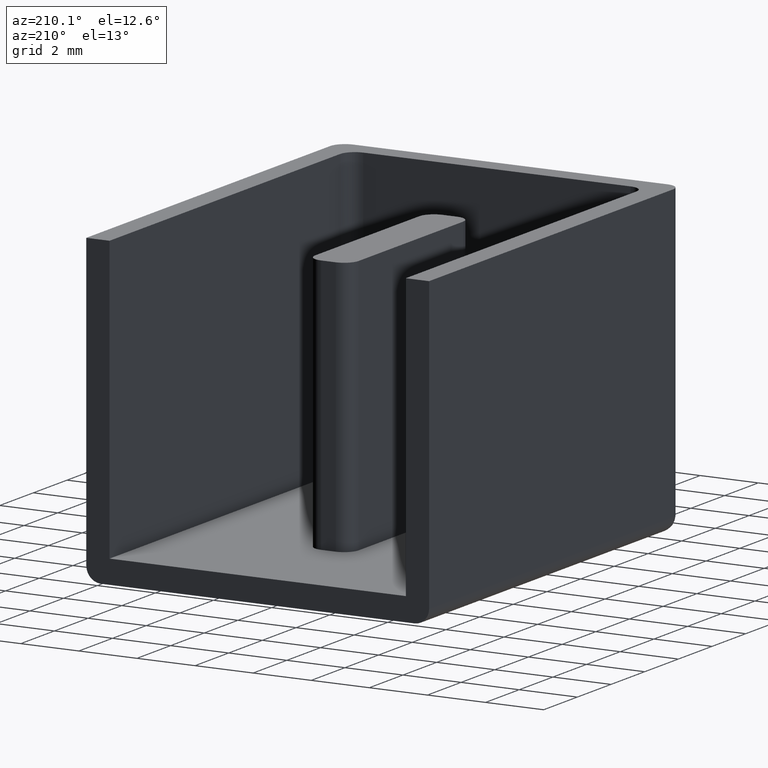
[diagram: clean part render]
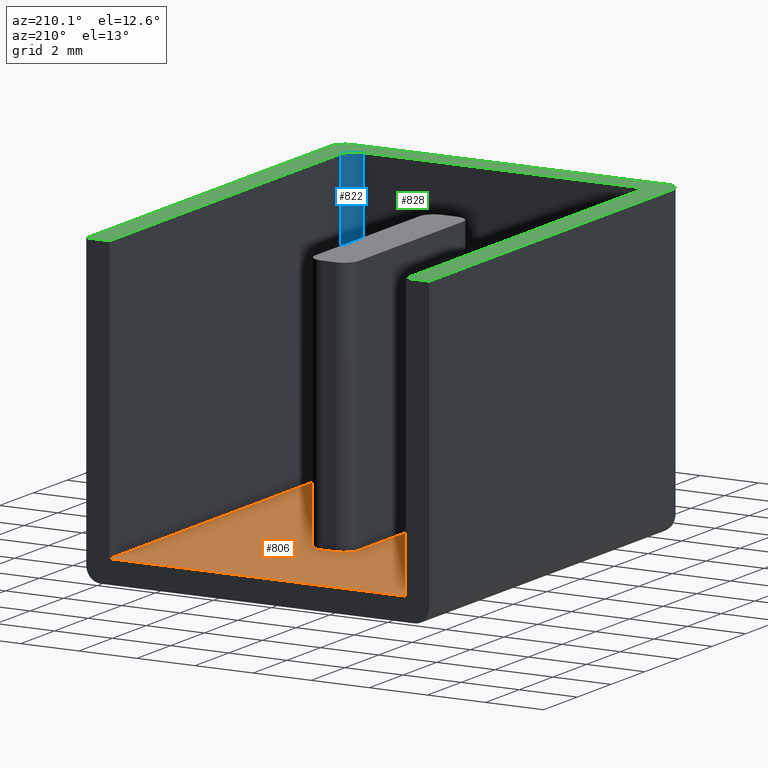
[diagram: same view with three faces highlighted in distinct colors, each labeled with its STEP entity id]
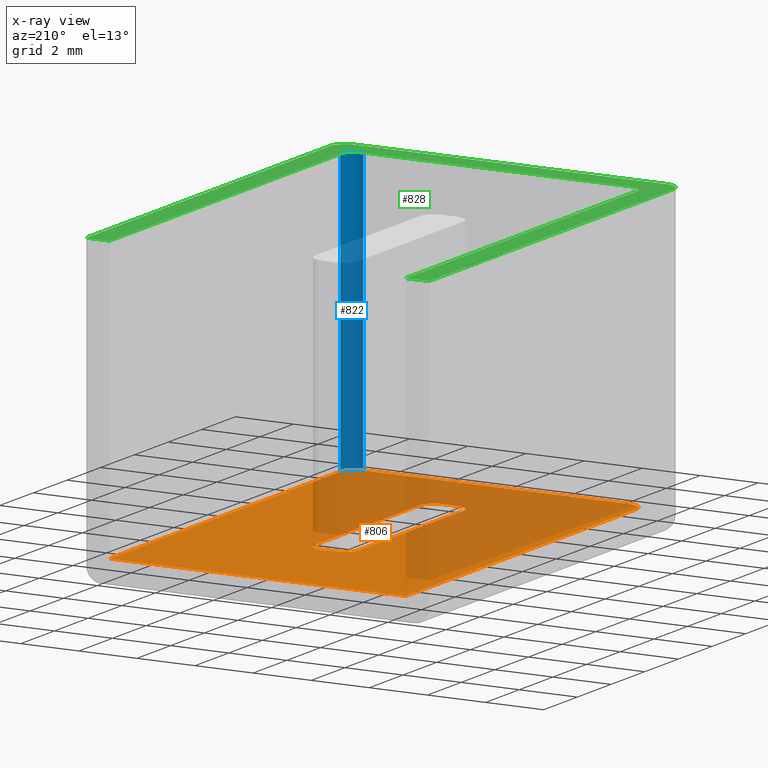
[diagram: x-ray of the same camera — body ghosted, the three highlighted faces saturated]
A machine part, auxiliary view with three faces highlighted in distinct colors.
The next image is the same camera in x-ray (body ghosted, the three faces saturated) — at least one of them is partly hidden behind the body in this view.
Their STEP definitions:

[orange] entity #806 — the highlighted planar face has unit normal (0, 0, -1).
#1 = AXIS2_PLACEMENT_3D ( 'NONE', #386, #387, #389 ) ;
#4 = VECTOR ( 'NONE', #435, 1000.000000000000000 ) ;
#13 = CIRCLE ( 'NONE', #19, 0.4999999999999726900 ) ;
#16 = VECTOR ( 'NONE', #415, 1000.000000000000000 ) ;
#19 = AXIS2_PLACEMENT_3D ( 'NONE', #432, #413, #433 ) ;
#26 = VECTOR ( 'NONE', #670, 1000.000000000000000 ) ;
#27 = AXIS2_PLACEMENT_3D ( 'NONE', #554, #549, #567 ) ;
#28 = AXIS2_PLACEMENT_3D ( 'NONE', #598, #592, #612 ) ;
#42 = CIRCLE ( 'NONE', #48, 0.5000000000000000000 ) ;
#48 = AXIS2_PLACEMENT_3D ( 'NONE', #649, #650, #660 ) ;
#61 = CIRCLE ( 'NONE', #27, 0.5000000000000004400 ) ;
#64 = CIRCLE ( 'NONE', #28, 0.4999999999999726900 ) ;
#88 = CIRCLE ( 'NONE', #89, 0.5000000000000698300 ) ;
#89 = AXIS2_PLACEMENT_3D ( 'NONE', #689, #703, #705 ) ;
#96 = VECTOR ( 'NONE', #651, 1000.000000000000000 ) ;
#98 = VECTOR ( 'NONE', #749, 1000.000000000000000 ) ;
#100 = VECTOR ( 'NONE', #726, 1000.000000000000000 ) ;
#101 = AXIS2_PLACEMENT_3D ( 'NONE', #735, #729, #753 ) ;
#102 = VECTOR ( 'NONE', #682, 1000.000000000000000 ) ;
#106 = CIRCLE ( 'NONE', #101, 0.4999999999999726900 ) ;
#123 = VECTOR ( 'NONE', #688, 1000.000000000000000 ) ;
#140 = ORIENTED_EDGE ( 'NONE', *, *, #888, .F. ) ;
#141 = ORIENTED_EDGE ( 'NONE', *, *, #858, .T. ) ;
#142 = ORIENTED_EDGE ( 'NONE', *, *, #891, .F. ) ;
#143 = ORIENTED_EDGE ( 'NONE', *, *, #864, .F. ) ;
#144 = ORIENTED_EDGE ( 'NONE', *, *, #804, .F. ) ;
#145 = ORIENTED_EDGE ( 'NONE', *, *, #835, .T. ) ;
#149 = ORIENTED_EDGE ( 'NONE', *, *, #802, .T. ) ;
#150 = ORIENTED_EDGE ( 'NONE', *, *, #883, .T. ) ;
#151 = ORIENTED_EDGE ( 'NONE', *, *, #890, .T. ) ;
#152 = ORIENTED_EDGE ( 'NONE', *, *, #868, .F. ) ;
#153 = ORIENTED_EDGE ( 'NONE', *, *, #850, .F. ) ;
#159 = ORIENTED_EDGE ( 'NONE', *, *, #876, .F. ) ;
#175 = ORIENTED_EDGE ( 'NONE', *, *, #884, .F. ) ;
#202 = ORIENTED_EDGE ( 'NONE', *, *, #805, .F. ) ;
#268 = VERTEX_POINT ( 'NONE', #369 ) ;
#272 = VERTEX_POINT ( 'NONE', #288 ) ;
#273 = VERTEX_POINT ( 'NONE', #304 ) ;
#274 = VERTEX_POINT ( 'NONE', #334 ) ;
#275 = VERTEX_POINT ( 'NONE', #326 ) ;
#282 = VERTEX_POINT ( 'NONE', #346 ) ;
#283 = VERTEX_POINT ( 'NONE', #367 ) ;
#284 = VERTEX_POINT ( 'NONE', #351 ) ;
#285 = VERTEX_POINT ( 'NONE', #347 ) ;
#288 = CARTESIAN_POINT ( 'NONE',  ( 5.649999999999821800, 10.80000000000011400, 0.8000000000000003800 ) ) ;
#295 = EDGE_LOOP ( 'NONE', ( #144, #152, #153, #140, #142, #175, #159, #202 ) ) ;
#304 = CARTESIAN_POINT ( 'NONE',  ( 11.00000000000000200, 1.299999999999999200, 0.8000000000000000400 ) ) ;
#306 = VERTEX_POINT ( 'NONE', #353 ) ;
#317 = EDGE_LOOP ( 'NONE', ( #149, #145, #150, #143, #151, #141 ) ) ;
#321 = VERTEX_POINT ( 'NONE', #383 ) ;
#322 = VERTEX_POINT ( 'NONE', #355 ) ;
#324 = VERTEX_POINT ( 'NONE', #325 ) ;
#325 = CARTESIAN_POINT ( 'NONE',  ( 1.300000000000000000, 0.8000000000000003800, 0.8000000000000000400 ) ) ;
#326 = CARTESIAN_POINT ( 'NONE',  ( 6.149999999999877800, 10.80000000000011400, 0.8000000000000000400 ) ) ;
#332 = CARTESIAN_POINT ( 'NONE',  ( 6.650000000000003000, 10.30000000000031000, 0.8000000000000003800 ) ) ;
#334 = CARTESIAN_POINT ( 'NONE',  ( 5.649999999999932900, 3.599999999999992100, 0.8000000000000000400 ) ) ;
#346 = CARTESIAN_POINT ( 'NONE',  ( 0.7999999999999999300, 15.00000000000000400, 0.8000000000000000400 ) ) ;
#347 = CARTESIAN_POINT ( 'NONE',  ( 11.00000000000000200, 15.00000000000000400, 0.8000000000000000400 ) ) ;
#351 = CARTESIAN_POINT ( 'NONE',  ( 0.7999999999999999300, 1.299999999999999200, 0.8000000000000000400 ) ) ;
#353 = CARTESIAN_POINT ( 'NONE',  ( 5.149999999999987900, 10.30000000000014300, 0.8000000000000000400 ) ) ;
#355 = CARTESIAN_POINT ( 'NONE',  ( 6.649999999999933700, 4.099999999999992500, 0.8000000000000000400 ) ) ;
#361 = VERTEX_POINT ( 'NONE', #332 ) ;
#367 = CARTESIAN_POINT ( 'NONE',  ( 5.149999999999960400, 4.099999999999992500, 0.8000000000000003800 ) ) ;
#369 = CARTESIAN_POINT ( 'NONE',  ( 6.149999999999988800, 3.599999999999992100, 0.8000000000000000400 ) ) ;
#383 = CARTESIAN_POINT ( 'NONE',  ( 10.49999999999999800, 0.8000000000000003800, 0.8000000000000000400 ) ) ;
#385 = FACE_OUTER_BOUND ( 'NONE', #317, .T. ) ;
#386 = CARTESIAN_POINT ( 'NONE',  ( 0.0000000000000000000, 15.00000000000000000, 0.8000000000000000400 ) ) ;
#387 = DIRECTION ( 'NONE',  ( 0.0000000000000000000, 0.0000000000000000000, -1.000000000000000000 ) ) ;
#389 = DIRECTION ( 'NONE',  ( -1.000000000000000000, 0.0000000000000000000, -0.0000000000000000000 ) ) ;
#399 = PLANE ( 'NONE',  #1 ) ;
#401 = CARTESIAN_POINT ( 'NONE',  ( 6.650000000000044800, 10.30000000000031000, 0.8000000000000000400 ) ) ;
#409 = FACE_BOUND ( 'NONE', #295, .T. ) ;
#413 = DIRECTION ( 'NONE',  ( 0.0000000000000000000, 0.0000000000000000000, 1.000000000000000000 ) ) ;
#415 = DIRECTION ( 'NONE',  ( 1.000000000000000000, 0.0000000000000000000, 0.0000000000000000000 ) ) ;
#424 = LINE ( 'NONE', #428, #16 ) ;
#428 = CARTESIAN_POINT ( 'NONE',  ( 0.0000000000000000000, 0.8000000000000003800, 0.8000000000000000400 ) ) ;
#429 = LINE ( 'NONE', #401, #4 ) ;
#432 = CARTESIAN_POINT ( 'NONE',  ( 6.149999999999988800, 4.099999999999992500, 0.8000000000000000400 ) ) ;
#433 = DIRECTION ( 'NONE',  ( 1.000000000000000000, 0.0000000000000000000, 0.0000000000000000000 ) ) ;
#435 = DIRECTION ( 'NONE',  ( 1.790682297782419300E-014, 1.000000000000000000, -0.0000000000000000000 ) ) ;
#549 = DIRECTION ( 'NONE',  ( -0.0000000000000000000, -0.0000000000000000000, 1.000000000000000000 ) ) ;
#554 = CARTESIAN_POINT ( 'NONE',  ( 10.49999999999999800, 1.300000000000000000, 0.8000000000000003800 ) ) ;
#567 = DIRECTION ( 'NONE',  ( -1.000000000000000000, 0.0000000000000000000, 0.0000000000000000000 ) ) ;
#592 = DIRECTION ( 'NONE',  ( 0.0000000000000000000, 0.0000000000000000000, 1.000000000000000000 ) ) ;
#598 = CARTESIAN_POINT ( 'NONE',  ( 5.649999999999932900, 4.099999999999992500, 0.8000000000000000400 ) ) ;
#612 = DIRECTION ( 'NONE',  ( 1.000000000000000000, 0.0000000000000000000, 0.0000000000000000000 ) ) ;
#630 = LINE ( 'NONE', #654, #96 ) ;
#637 = CARTESIAN_POINT ( 'NONE',  ( 0.0000000000000000000, 15.00000000000000000, 0.8000000000000020400 ) ) ;
#649 = CARTESIAN_POINT ( 'NONE',  ( 1.300000000000000000, 1.299999999999999800, 0.8000000000000003800 ) ) ;
#650 = DIRECTION ( 'NONE',  ( -0.0000000000000000000, -0.0000000000000000000, 1.000000000000000000 ) ) ;
#651 = DIRECTION ( 'NONE',  ( 1.000000000000000000, -0.0000000000000000000, -0.0000000000000000000 ) ) ;
#654 = CARTESIAN_POINT ( 'NONE',  ( 6.149999999999988800, 3.599999999999992100, 0.8000000000000000400 ) ) ;
#659 = LINE ( 'NONE', #637, #26 ) ;
#660 = DIRECTION ( 'NONE',  ( -1.000000000000000000, 0.0000000000000000000, 0.0000000000000000000 ) ) ;
#670 = DIRECTION ( 'NONE',  ( 1.000000000000000000, 0.0000000000000000000, 0.0000000000000000000 ) ) ;
#674 = CARTESIAN_POINT ( 'NONE',  ( 11.00000000000000200, 15.00000000000000000, 0.8000000000000000400 ) ) ;
#676 = LINE ( 'NONE', #674, #102 ) ;
#682 = DIRECTION ( 'NONE',  ( 0.0000000000000000000, 1.000000000000000000, 0.0000000000000000000 ) ) ;
#688 = DIRECTION ( 'NONE',  ( -1.000000000000000000, 5.551115123125161700E-014, -0.0000000000000000000 ) ) ;
#689 = CARTESIAN_POINT ( 'NONE',  ( 6.149999999999932900, 10.30000000000008600, 0.8000000000000000400 ) ) ;
#703 = DIRECTION ( 'NONE',  ( 0.0000000000000000000, 0.0000000000000000000, 1.000000000000000000 ) ) ;
#705 = DIRECTION ( 'NONE',  ( 1.000000000000000000, 0.0000000000000000000, 0.0000000000000000000 ) ) ;
#709 = CARTESIAN_POINT ( 'NONE',  ( 5.649999999999821800, 10.80000000000014300, 0.8000000000000000400 ) ) ;
#711 = LINE ( 'NONE', #709, #123 ) ;
#718 = LINE ( 'NONE', #745, #98 ) ;
#725 = LINE ( 'NONE', #734, #100 ) ;
#726 = DIRECTION ( 'NONE',  ( 0.0000000000000000000, -1.000000000000000000, 0.0000000000000000000 ) ) ;
#729 = DIRECTION ( 'NONE',  ( 0.0000000000000000000, 0.0000000000000000000, 1.000000000000000000 ) ) ;
#734 = CARTESIAN_POINT ( 'NONE',  ( 0.7999999999999999300, 15.00000000000000000, 0.8000000000000000400 ) ) ;
#735 = CARTESIAN_POINT ( 'NONE',  ( 5.649999999999932900, 10.30000000000014300, 0.8000000000000000400 ) ) ;
#745 = CARTESIAN_POINT ( 'NONE',  ( 5.149999999999987900, 4.099999999999992500, 0.8000000000000000400 ) ) ;
#749 = DIRECTION ( 'NONE',  ( -0.0000000000000000000, -1.000000000000000000, -0.0000000000000000000 ) ) ;
#753 = DIRECTION ( 'NONE',  ( 1.000000000000000000, 0.0000000000000000000, 0.0000000000000000000 ) ) ;
#802 = EDGE_CURVE ( 'NONE', #324, #321, #424, .T. ) ;
#804 = EDGE_CURVE ( 'NONE', #268, #322, #13, .T. ) ;
#805 = EDGE_CURVE ( 'NONE', #322, #361, #429, .T. ) ;
#806 = ADVANCED_FACE ( 'NONE', ( #385, #409 ), #399, .F. ) ;
#835 = EDGE_CURVE ( 'NONE', #321, #273, #61, .T. ) ;
#850 = EDGE_CURVE ( 'NONE', #283, #274, #64, .T. ) ;
#858 = EDGE_CURVE ( 'NONE', #284, #324, #42, .T. ) ;
#864 = EDGE_CURVE ( 'NONE', #282, #285, #659, .T. ) ;
#868 = EDGE_CURVE ( 'NONE', #274, #268, #630, .T. ) ;
#876 = EDGE_CURVE ( 'NONE', #361, #275, #88, .T. ) ;
#883 = EDGE_CURVE ( 'NONE', #273, #285, #676, .T. ) ;
#884 = EDGE_CURVE ( 'NONE', #275, #272, #711, .T. ) ;
#888 = EDGE_CURVE ( 'NONE', #306, #283, #718, .T. ) ;
#890 = EDGE_CURVE ( 'NONE', #282, #284, #725, .T. ) ;
#891 = EDGE_CURVE ( 'NONE', #272, #306, #106, .T. ) ;

[blue] entity #822 — the highlighted cylindrical surface (edge-blend (fillet) strip) has radius 0.5 mm, axis along (0, 0, 1).
#27 = AXIS2_PLACEMENT_3D ( 'NONE', #554, #549, #567 ) ;
#61 = CIRCLE ( 'NONE', #27, 0.5000000000000004400 ) ;
#80 = AXIS2_PLACEMENT_3D ( 'NONE', #501, #540, #504 ) ;
#82 = VECTOR ( 'NONE', #653, 1000.000000000000000 ) ;
#99 = VECTOR ( 'NONE', #750, 1000.000000000000000 ) ;
#105 = CIRCLE ( 'NONE', #107, 0.5000000000000004400 ) ;
#107 = AXIS2_PLACEMENT_3D ( 'NONE', #738, #737, #720 ) ;
#215 = ORIENTED_EDGE ( 'NONE', *, *, #835, .F. ) ;
#219 = ORIENTED_EDGE ( 'NONE', *, *, #892, .F. ) ;
#236 = ORIENTED_EDGE ( 'NONE', *, *, #894, .F. ) ;
#240 = ORIENTED_EDGE ( 'NONE', *, *, #871, .F. ) ;
#273 = VERTEX_POINT ( 'NONE', #304 ) ;
#291 = EDGE_LOOP ( 'NONE', ( #236, #240, #215, #219 ) ) ;
#304 = CARTESIAN_POINT ( 'NONE',  ( 11.00000000000000200, 1.299999999999999200, 0.8000000000000000400 ) ) ;
#321 = VERTEX_POINT ( 'NONE', #383 ) ;
#338 = VERTEX_POINT ( 'NONE', #348 ) ;
#344 = VERTEX_POINT ( 'NONE', #378 ) ;
#348 = CARTESIAN_POINT ( 'NONE',  ( 11.00000000000000200, 1.299999999999999200, 10.50000000000000000 ) ) ;
#378 = CARTESIAN_POINT ( 'NONE',  ( 10.49999999999999800, 0.8000000000000003800, 10.50000000000000000 ) ) ;
#383 = CARTESIAN_POINT ( 'NONE',  ( 10.49999999999999800, 0.8000000000000003800, 0.8000000000000000400 ) ) ;
#501 = CARTESIAN_POINT ( 'NONE',  ( 10.49999999999999800, 1.300000000000000000, 10.50000000000000000 ) ) ;
#503 = FACE_OUTER_BOUND ( 'NONE', #291, .T. ) ;
#504 = DIRECTION ( 'NONE',  ( 1.000000000000000000, 0.0000000000000000000, 0.0000000000000000000 ) ) ;
#508 = CYLINDRICAL_SURFACE ( 'NONE', #80, 0.5000000000000004400 ) ;
#540 = DIRECTION ( 'NONE',  ( 0.0000000000000000000, 0.0000000000000000000, 1.000000000000000000 ) ) ;
#549 = DIRECTION ( 'NONE',  ( -0.0000000000000000000, -0.0000000000000000000, 1.000000000000000000 ) ) ;
#554 = CARTESIAN_POINT ( 'NONE',  ( 10.49999999999999800, 1.300000000000000000, 0.8000000000000003800 ) ) ;
#567 = DIRECTION ( 'NONE',  ( -1.000000000000000000, 0.0000000000000000000, 0.0000000000000000000 ) ) ;
#653 = DIRECTION ( 'NONE',  ( -0.0000000000000000000, -0.0000000000000000000, 1.000000000000000000 ) ) ;
#668 = LINE ( 'NONE', #669, #82 ) ;
#669 = CARTESIAN_POINT ( 'NONE',  ( 11.00000000000000200, 1.300000000000000000, 10.50000000000000000 ) ) ;
#681 = LINE ( 'NONE', #683, #99 ) ;
#683 = CARTESIAN_POINT ( 'NONE',  ( 10.49999999999999800, 0.7999999999999999300, 0.8000000000000003800 ) ) ;
#720 = DIRECTION ( 'NONE',  ( -1.000000000000000000, 0.0000000000000000000, 0.0000000000000000000 ) ) ;
#737 = DIRECTION ( 'NONE',  ( 0.0000000000000000000, 0.0000000000000000000, -1.000000000000000000 ) ) ;
#738 = CARTESIAN_POINT ( 'NONE',  ( 10.49999999999999800, 1.300000000000000000, 10.50000000000000000 ) ) ;
#750 = DIRECTION ( 'NONE',  ( 0.0000000000000000000, 0.0000000000000000000, -1.000000000000000000 ) ) ;
#822 = ADVANCED_FACE ( 'NONE', ( #503 ), #508, .F. ) ;
#835 = EDGE_CURVE ( 'NONE', #321, #273, #61, .T. ) ;
#871 = EDGE_CURVE ( 'NONE', #273, #338, #668, .T. ) ;
#892 = EDGE_CURVE ( 'NONE', #344, #321, #681, .T. ) ;
#894 = EDGE_CURVE ( 'NONE', #338, #344, #105, .T. ) ;

[green] entity #828 — the highlighted planar face has unit normal (0, 0, -1).
#25 = CIRCLE ( 'NONE', #58, 0.5000000000000000000 ) ;
#29 = AXIS2_PLACEMENT_3D ( 'NONE', #662, #658, #667 ) ;
#40 = AXIS2_PLACEMENT_3D ( 'NONE', #497, #518, #500 ) ;
#41 = CIRCLE ( 'NONE', #44, 0.5000000000000000000 ) ;
#44 = AXIS2_PLACEMENT_3D ( 'NONE', #607, #589, #594 ) ;
#58 = AXIS2_PLACEMENT_3D ( 'NONE', #636, #652, #647 ) ;
#72 = VECTOR ( 'NONE', #558, 1000.000000000000000 ) ;
#75 = CIRCLE ( 'NONE', #29, 0.5000000000000004400 ) ;
#84 = VECTOR ( 'NONE', #696, 1000.000000000000000 ) ;
#86 = VECTOR ( 'NONE', #691, 1000.000000000000000 ) ;
#91 = VECTOR ( 'NONE', #663, 1000.000000000000000 ) ;
#93 = VECTOR ( 'NONE', #643, 1000.000000000000000 ) ;
#97 = VECTOR ( 'NONE', #657, 1000.000000000000000 ) ;
#105 = CIRCLE ( 'NONE', #107, 0.5000000000000004400 ) ;
#107 = AXIS2_PLACEMENT_3D ( 'NONE', #738, #737, #720 ) ;
#110 = VECTOR ( 'NONE', #751, 1000.000000000000000 ) ;
#114 = VECTOR ( 'NONE', #697, 1000.000000000000000 ) ;
#146 = ORIENTED_EDGE ( 'NONE', *, *, #869, .T. ) ;
#147 = ORIENTED_EDGE ( 'NONE', *, *, #861, .T. ) ;
#148 = ORIENTED_EDGE ( 'NONE', *, *, #865, .T. ) ;
#155 = ORIENTED_EDGE ( 'NONE', *, *, #837, .F. ) ;
#161 = ORIENTED_EDGE ( 'NONE', *, *, #894, .T. ) ;
#165 = ORIENTED_EDGE ( 'NONE', *, *, #889, .T. ) ;
#170 = ORIENTED_EDGE ( 'NONE', *, *, #873, .F. ) ;
#177 = ORIENTED_EDGE ( 'NONE', *, *, #863, .T. ) ;
#186 = ORIENTED_EDGE ( 'NONE', *, *, #856, .T. ) ;
#193 = ORIENTED_EDGE ( 'NONE', *, *, #880, .F. ) ;
#228 = ORIENTED_EDGE ( 'NONE', *, *, #870, .T. ) ;
#251 = ORIENTED_EDGE ( 'NONE', *, *, #875, .T. ) ;
#305 = EDGE_LOOP ( 'NONE', ( #146, #147, #148, #165, #155, #161, #193, #186, #170, #251, #228, #177 ) ) ;
#308 = VERTEX_POINT ( 'NONE', #377 ) ;
#327 = CARTESIAN_POINT ( 'NONE',  ( 0.0000000000000000000, 15.00000000000000000, 10.50000000000000000 ) ) ;
#328 = CARTESIAN_POINT ( 'NONE',  ( 11.30000000000000100, 0.0000000000000000000, 10.50000000000000000 ) ) ;
#329 = CARTESIAN_POINT ( 'NONE',  ( 1.300000000000000000, 0.8000000000000003800, 10.50000000000000000 ) ) ;
#338 = VERTEX_POINT ( 'NONE', #348 ) ;
#339 = VERTEX_POINT ( 'NONE', #357 ) ;
#343 = VERTEX_POINT ( 'NONE', #363 ) ;
#344 = VERTEX_POINT ( 'NONE', #378 ) ;
#345 = VERTEX_POINT ( 'NONE', #381 ) ;
#348 = CARTESIAN_POINT ( 'NONE',  ( 11.00000000000000200, 1.299999999999999200, 10.50000000000000000 ) ) ;
#349 = VERTEX_POINT ( 'NONE', #382 ) ;
#350 = VERTEX_POINT ( 'NONE', #327 ) ;
#352 = VERTEX_POINT ( 'NONE', #328 ) ;
#357 = CARTESIAN_POINT ( 'NONE',  ( 11.80000000000000100, 15.00000000000000000, 10.50000000000000000 ) ) ;
#358 = VERTEX_POINT ( 'NONE', #329 ) ;
#363 = CARTESIAN_POINT ( 'NONE',  ( 0.4999999999999997800, 0.0000000000000000000, 10.50000000000000000 ) ) ;
#372 = VERTEX_POINT ( 'NONE', #418 ) ;
#377 = CARTESIAN_POINT ( 'NONE',  ( 11.00000000000000200, 15.00000000000000400, 10.50000000000000000 ) ) ;
#378 = CARTESIAN_POINT ( 'NONE',  ( 10.49999999999999800, 0.8000000000000003800, 10.50000000000000000 ) ) ;
#379 = VERTEX_POINT ( 'NONE', #426 ) ;
#381 = CARTESIAN_POINT ( 'NONE',  ( 0.0000000000000000000, 0.4999999999999998900, 10.50000000000000000 ) ) ;
#382 = CARTESIAN_POINT ( 'NONE',  ( 0.7999999999999999300, 1.299999999999999200, 10.50000000000000000 ) ) ;
#418 = CARTESIAN_POINT ( 'NONE',  ( 0.7999999999999999300, 15.00000000000000400, 10.50000000000000000 ) ) ;
#426 = CARTESIAN_POINT ( 'NONE',  ( 11.80000000000000100, 0.4999999999999997800, 10.50000000000000000 ) ) ;
#494 = FACE_OUTER_BOUND ( 'NONE', #305, .T. ) ;
#496 = PLANE ( 'NONE',  #40 ) ;
#497 = CARTESIAN_POINT ( 'NONE',  ( 0.0000000000000000000, 15.00000000000000000, 10.50000000000000000 ) ) ;
#500 = DIRECTION ( 'NONE',  ( -1.000000000000000000, 0.0000000000000000000, -0.0000000000000000000 ) ) ;
#518 = DIRECTION ( 'NONE',  ( 0.0000000000000000000, 0.0000000000000000000, -1.000000000000000000 ) ) ;
#558 = DIRECTION ( 'NONE',  ( 0.0000000000000000000, 1.000000000000000000, 0.0000000000000000000 ) ) ;
#569 = LINE ( 'NONE', #582, #72 ) ;
#582 = CARTESIAN_POINT ( 'NONE',  ( 11.00000000000000200, 15.00000000000000000, 10.50000000000000000 ) ) ;
#589 = DIRECTION ( 'NONE',  ( 0.0000000000000000000, 0.0000000000000000000, -1.000000000000000000 ) ) ;
#594 = DIRECTION ( 'NONE',  ( -1.000000000000000000, 0.0000000000000000000, 0.0000000000000000000 ) ) ;
#607 = CARTESIAN_POINT ( 'NONE',  ( 1.300000000000000000, 1.299999999999999800, 10.50000000000000000 ) ) ;
#628 = CARTESIAN_POINT ( 'NONE',  ( 0.7999999999999999300, 15.00000000000000000, 10.50000000000000000 ) ) ;
#629 = LINE ( 'NONE', #692, #86 ) ;
#635 = CARTESIAN_POINT ( 'NONE',  ( 11.80000000000000100, 0.0000000000000000000, 10.50000000000000000 ) ) ;
#636 = CARTESIAN_POINT ( 'NONE',  ( 0.4999999999999997800, 0.4999999999999998900, 10.50000000000000000 ) ) ;
#641 = CARTESIAN_POINT ( 'NONE',  ( 0.0000000000000000000, 0.0000000000000000000, 10.50000000000000000 ) ) ;
#643 = DIRECTION ( 'NONE',  ( 0.0000000000000000000, 1.000000000000000000, 0.0000000000000000000 ) ) ;
#645 = LINE ( 'NONE', #656, #97 ) ;
#647 = DIRECTION ( 'NONE',  ( -1.000000000000000000, 0.0000000000000000000, 0.0000000000000000000 ) ) ;
#648 = LINE ( 'NONE', #635, #93 ) ;
#652 = DIRECTION ( 'NONE',  ( -0.0000000000000000000, -0.0000000000000000000, 1.000000000000000000 ) ) ;
#656 = CARTESIAN_POINT ( 'NONE',  ( 0.0000000000000000000, 0.0000000000000000000, 10.50000000000000000 ) ) ;
#657 = DIRECTION ( 'NONE',  ( 1.000000000000000000, 0.0000000000000000000, 0.0000000000000000000 ) ) ;
#658 = DIRECTION ( 'NONE',  ( -0.0000000000000000000, -0.0000000000000000000, 1.000000000000000000 ) ) ;
#661 = LINE ( 'NONE', #641, #91 ) ;
#662 = CARTESIAN_POINT ( 'NONE',  ( 11.30000000000000100, 0.4999999999999997800, 10.50000000000000000 ) ) ;
#663 = DIRECTION ( 'NONE',  ( -0.0000000000000000000, -1.000000000000000000, -0.0000000000000000000 ) ) ;
#667 = DIRECTION ( 'NONE',  ( -1.000000000000000000, 0.0000000000000000000, 0.0000000000000000000 ) ) ;
#672 = LINE ( 'NONE', #628, #84 ) ;
#680 = LINE ( 'NONE', #707, #114 ) ;
#691 = DIRECTION ( 'NONE',  ( -1.000000000000000000, -0.0000000000000000000, -0.0000000000000000000 ) ) ;
#692 = CARTESIAN_POINT ( 'NONE',  ( 0.0000000000000000000, 15.00000000000000000, 10.50000000000000000 ) ) ;
#696 = DIRECTION ( 'NONE',  ( 0.0000000000000000000, -1.000000000000000000, 0.0000000000000000000 ) ) ;
#697 = DIRECTION ( 'NONE',  ( 1.000000000000000000, 0.0000000000000000000, 0.0000000000000000000 ) ) ;
#707 = CARTESIAN_POINT ( 'NONE',  ( 0.0000000000000000000, 0.8000000000000003800, 10.50000000000000000 ) ) ;
#720 = DIRECTION ( 'NONE',  ( -1.000000000000000000, 0.0000000000000000000, 0.0000000000000000000 ) ) ;
#737 = DIRECTION ( 'NONE',  ( 0.0000000000000000000, 0.0000000000000000000, -1.000000000000000000 ) ) ;
#738 = CARTESIAN_POINT ( 'NONE',  ( 10.49999999999999800, 1.300000000000000000, 10.50000000000000000 ) ) ;
#740 = LINE ( 'NONE', #743, #110 ) ;
#743 = CARTESIAN_POINT ( 'NONE',  ( 0.0000000000000000000, 15.00000000000000000, 10.50000000000000000 ) ) ;
#751 = DIRECTION ( 'NONE',  ( -1.000000000000000000, -0.0000000000000000000, -0.0000000000000000000 ) ) ;
#828 = ADVANCED_FACE ( 'NONE', ( #494 ), #496, .F. ) ;
#837 = EDGE_CURVE ( 'NONE', #338, #308, #569, .T. ) ;
#856 = EDGE_CURVE ( 'NONE', #358, #349, #41, .T. ) ;
#861 = EDGE_CURVE ( 'NONE', #352, #379, #75, .T. ) ;
#863 = EDGE_CURVE ( 'NONE', #345, #343, #25, .T. ) ;
#865 = EDGE_CURVE ( 'NONE', #379, #339, #648, .T. ) ;
#869 = EDGE_CURVE ( 'NONE', #343, #352, #645, .T. ) ;
#870 = EDGE_CURVE ( 'NONE', #350, #345, #661, .T. ) ;
#873 = EDGE_CURVE ( 'NONE', #372, #349, #672, .T. ) ;
#875 = EDGE_CURVE ( 'NONE', #372, #350, #629, .T. ) ;
#880 = EDGE_CURVE ( 'NONE', #358, #344, #680, .T. ) ;
#889 = EDGE_CURVE ( 'NONE', #339, #308, #740, .T. ) ;
#894 = EDGE_CURVE ( 'NONE', #338, #344, #105, .T. ) ;